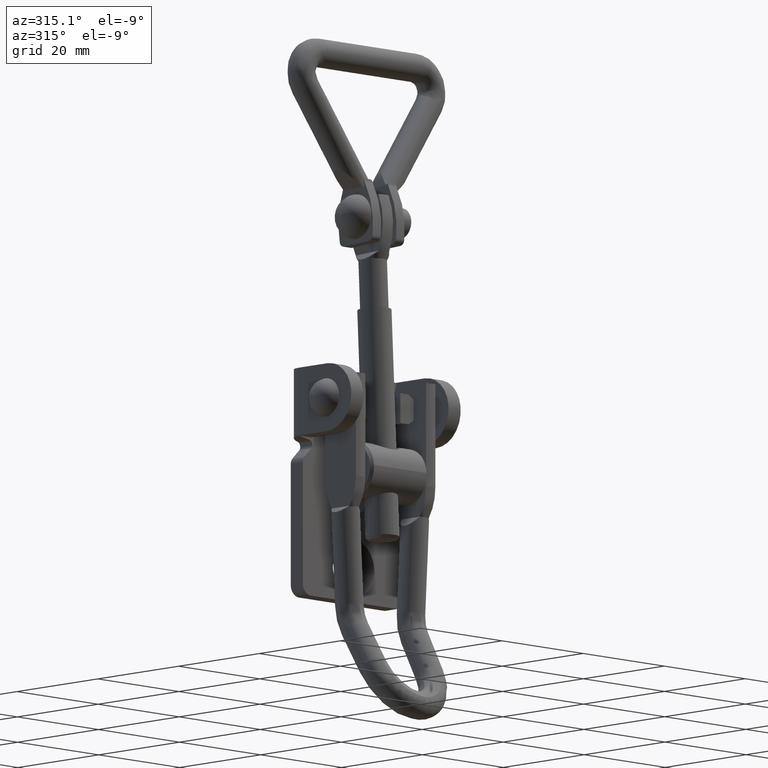
[diagram: clean part render]
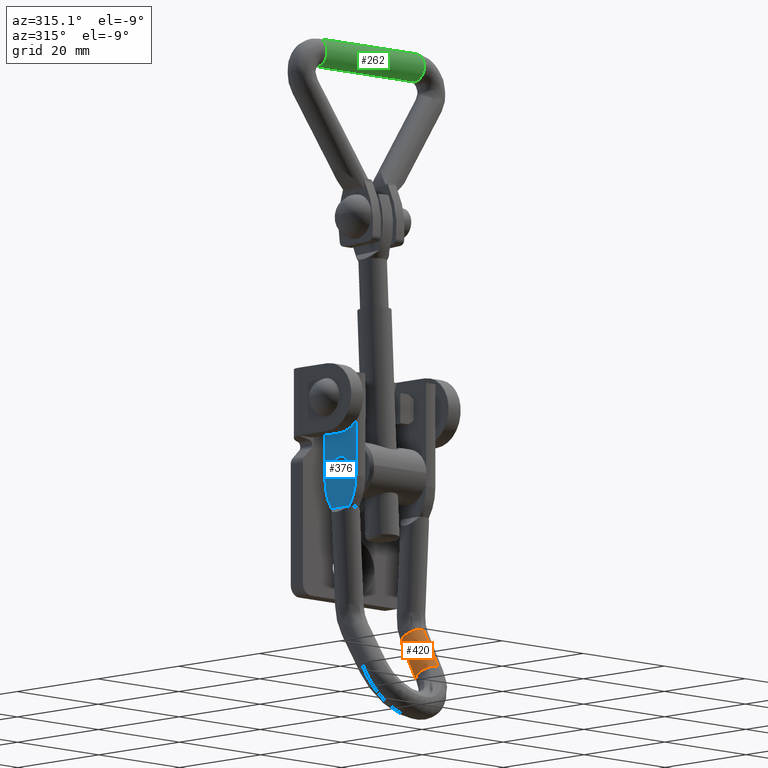
[diagram: same view with three faces highlighted in distinct colors, each labeled with its STEP entity id]
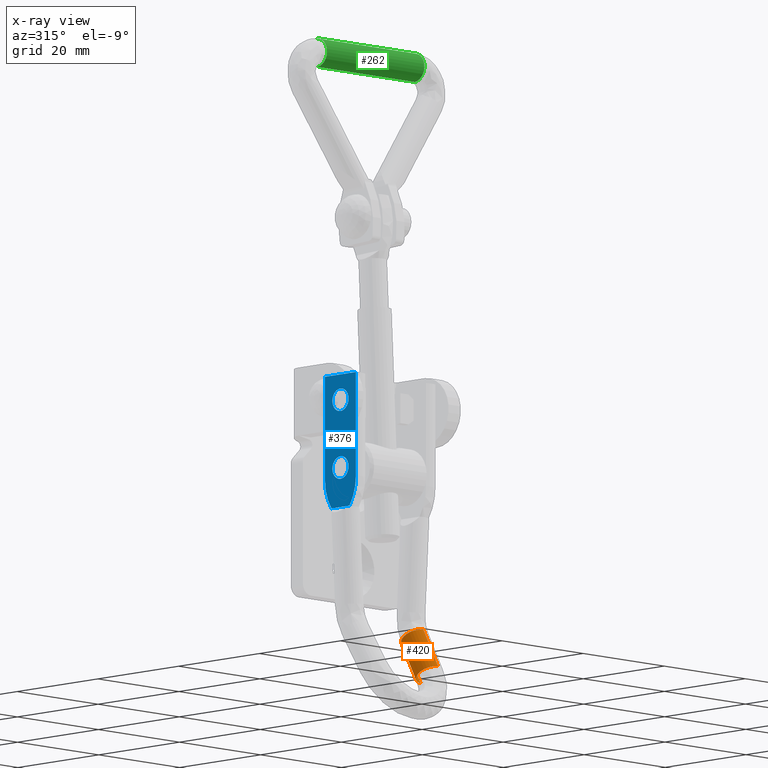
[diagram: x-ray of the same camera — body ghosted, the three highlighted faces saturated]
A machine part, auxiliary view with three faces highlighted in distinct colors.
The next image is the same camera in x-ray (body ghosted, the three faces saturated) — at least one of them is partly hidden behind the body in this view.
Their STEP definitions:

[orange] entity #420 — the highlighted cylindrical surface (edge-blend (fillet) strip) has radius 2.5 mm, axis along (-0.0476, -0.4994, -0.865).
#420=ADVANCED_FACE('',(#2421),#2420,.T.);
#2420=CYLINDRICAL_SURFACE('',#4085,2.50000000000E+00);
#2421=FACE_OUTER_BOUND('',#4086,.T.);
#4082=CARTESIAN_POINT('',(8.53888887601E+00,1.10776430434E+01,-7.22450215029E+00));
#4083=DIRECTION('',(-4.75975933859E-02,-4.99433296080E-01,-8.65043843901E-01));
#4084=DIRECTION('',(0.00000000000E+00,8.66025403809E-01,-4.99999999958E-01));
#4085=AXIS2_PLACEMENT_3D('',#4082,#4083,#4084);
#4086=EDGE_LOOP('',(#5033,#5034,#5035,#5036,#5037,#5038));
#5033=ORIENTED_EDGE('',*,*,#5442,.T.);
#5034=ORIENTED_EDGE('',*,*,#5443,.T.);
#5035=ORIENTED_EDGE('',*,*,#5513,.T.);
#5036=ORIENTED_EDGE('',*,*,#5417,.F.);
#5037=ORIENTED_EDGE('',*,*,#5466,.F.);
#5038=ORIENTED_EDGE('',*,*,#5514,.F.);
#5417=EDGE_CURVE('',#8026,#8033,#8034,.T.);
#5442=EDGE_CURVE('',#8170,#8197,#8204,.T.);
#5443=EDGE_CURVE('',#8197,#8210,#8211,.T.);
#5466=EDGE_CURVE('',#8061,#8026,#8357,.T.);
#5513=EDGE_CURVE('',#8210,#8033,#8658,.T.);
#5514=EDGE_CURVE('',#8170,#8061,#8664,.T.);
#8026=VERTEX_POINT('',#10716);
#8033=VERTEX_POINT('',#10722);
#8034=CIRCLE('',#10726,2.50000000000E+00);
#8061=VERTEX_POINT('',#10744);
#8170=VERTEX_POINT('',#10841);
#8197=VERTEX_POINT('',#10858);
#8204=CIRCLE('',#10865,2.50000000000E+00);
#8210=VERTEX_POINT('',#10866);
#8211=CIRCLE('',#10870,2.50000000000E+00);
#8357=CIRCLE('',#10987,2.50000000000E+00);
#8658=(BOUNDED_CURVE() B_SPLINE_CURVE(1,(#11175,#11176),.UNSPECIFIED.,.F.,.F.) B_SPLINE_CURVE_WITH_KNOTS((2,2),(8.33333366442E-02,9.16666667899E-01),.UNSPECIFIED.) CURVE() GEOMETRIC_REPRESENTATION_ITEM() RATIONAL_B_SPLINE_CURVE((1.00000000000E+00,1.00000000000E+00)) REPRESENTATION_ITEM('') );
#8664=(BOUNDED_CURVE() B_SPLINE_CURVE(1,(#11177,#11178),.UNSPECIFIED.,.F.,.F.) B_SPLINE_CURVE_WITH_KNOTS((2,2),(8.33333333467E-02,9.16666666657E-01),.UNSPECIFIED.) CURVE() GEOMETRIC_REPRESENTATION_ITEM() RATIONAL_B_SPLINE_CURVE((7.50000000000E-01,7.50000000000E-01)) REPRESENTATION_ITEM('') );
#10716=CARTESIAN_POINT('',(4.49320340343E+00,-5.18058639461E+00,-3.52472310162E+01));
#10722=CARTESIAN_POINT('',(6.98942751645E+00,-3.01552288509E+00,-3.66345815807E+01));
#10723=CARTESIAN_POINT('',(6.98942751645E+00,-5.18058639461E+00,-3.53845815808E+01));
#10724=DIRECTION('',(-4.75975933859E-02,-4.99433296080E-01,-8.65043843901E-01));
#10725=DIRECTION('',(-0.00000000000E+00,8.66025403809E-01,-4.99999999958E-01));
#10726=AXIS2_PLACEMENT_3D('',#10723,#10724,#10725);
#10744=CARTESIAN_POINT('',(6.98942751645E+00,-7.34564990387E+00,-3.41345815809E+01));
#10841=CARTESIAN_POINT('',(7.37462422874E+00,-3.30384757778E+00,-2.71339745972E+01));
#10858=CARTESIAN_POINT('',(4.87840011574E+00,-1.13878406841E+00,-2.82466240323E+01));
#10862=CARTESIAN_POINT('',(7.37462422875E+00,-1.13878406826E+00,-2.83839745970E+01));
#10863=DIRECTION('',(-4.75975933859E-02,-4.99433296080E-01,-8.65043843901E-01));
#10864=DIRECTION('',(2.64219720469E-18,8.66025403809E-01,-4.99999999958E-01));
#10865=AXIS2_PLACEMENT_3D('',#10862,#10863,#10864);
#10866=CARTESIAN_POINT('',(7.37462422876E+00,1.02627944111E+00,-2.96339745968E+01));
#10867=CARTESIAN_POINT('',(7.37462422876E+00,-1.13878406841E+00,-2.83839745969E+01));
#10868=DIRECTION('',(-4.75975933859E-02,-4.99433296080E-01,-8.65043843901E-01));
#10869=DIRECTION('',(-2.64219720469E-18,8.66025403809E-01,-4.99999999958E-01));
#10870=AXIS2_PLACEMENT_3D('',#10867,#10868,#10869);
#10984=CARTESIAN_POINT('',(6.98942751645E+00,-5.18058639435E+00,-3.53845815808E+01));
#10985=DIRECTION('',(-4.75975933859E-02,-4.99433296080E-01,-8.65043843901E-01));
#10986=DIRECTION('',(2.64219720469E-18,8.66025403809E-01,-4.99999999958E-01));
#10987=AXIS2_PLACEMENT_3D('',#10984,#10985,#10986);
#11175=CARTESIAN_POINT('',(7.37462422723E+00,1.02627942528E+00,-2.96339746246E+01));
#11176=CARTESIAN_POINT('',(6.98942751587E+00,-3.01552289087E+00,-3.66345815911E+01));
#11177=CARTESIAN_POINT('',(7.37462422875E+00,-3.30384757777E+00,-2.71339745971E+01));
#11178=CARTESIAN_POINT('',(6.98942751645E+00,-7.34564990389E+00,-3.41345815809E+01));

[blue] entity #376 — the highlighted planar face has unit normal (-1, 0, 0).
#376=ADVANCED_FACE('',(#1975,#1976,#1977),#1974,.T.);
#1974=PLANE('',#3638);
#1975=FACE_OUTER_BOUND('',#3639,.T.);
#1976=FACE_BOUND('',#3640,.T.);
#1977=FACE_BOUND('',#3641,.T.);
#3635=CARTESIAN_POINT('',(-9.80000000000E+00,-4.59557969623E+00,-9.34774155038E+00));
#3636=DIRECTION('',(-1.00000000000E+00,0.00000000000E+00,0.00000000000E+00));
#3637=DIRECTION('',(0.00000000000E+00,0.00000000000E+00,1.00000000000E+00));
#3638=AXIS2_PLACEMENT_3D('',#3635,#3636,#3637);
#3639=EDGE_LOOP('',(#4819,#4820,#4821,#4822,#4823,#4824));
#3640=EDGE_LOOP('',(#4825,#4826));
#3641=EDGE_LOOP('',(#4827,#4828));
#4819=ORIENTED_EDGE('',*,*,#5424,.T.);
#4820=ORIENTED_EDGE('',*,*,#5425,.F.);
#4821=ORIENTED_EDGE('',*,*,#5426,.F.);
#4822=ORIENTED_EDGE('',*,*,#5427,.F.);
#4823=ORIENTED_EDGE('',*,*,#5428,.T.);
#4824=ORIENTED_EDGE('',*,*,#5429,.T.);
#4825=ORIENTED_EDGE('',*,*,#5430,.F.);
#4826=ORIENTED_EDGE('',*,*,#5431,.F.);
#4827=ORIENTED_EDGE('',*,*,#5432,.F.);
#4828=ORIENTED_EDGE('',*,*,#5433,.F.);
#5424=EDGE_CURVE('',#8081,#8082,#8083,.T.);
#5425=EDGE_CURVE('',#8089,#8082,#8090,.T.);
#5426=EDGE_CURVE('',#8096,#8089,#8097,.T.);
#5427=EDGE_CURVE('',#8103,#8096,#8104,.T.);
#5428=EDGE_CURVE('',#8103,#7965,#8110,.T.);
#5429=EDGE_CURVE('',#7965,#8081,#8116,.T.);
#5430=EDGE_CURVE('',#8122,#8123,#8124,.T.);
#5431=EDGE_CURVE('',#8123,#8122,#8130,.T.);
#5432=EDGE_CURVE('',#8136,#8137,#8138,.T.);
#5433=EDGE_CURVE('',#8137,#8136,#8144,.T.);
#7965=VERTEX_POINT('',#10673);
#8081=VERTEX_POINT('',#10759);
#8082=VERTEX_POINT('',#10760);
#8083=(BOUNDED_CURVE() B_SPLINE_CURVE(3,(#10761,#10762,#10763,#10764,#10765,#10766,#10767,#10768,#10769,#10770),.UNSPECIFIED.,.F.,.F.) B_SPLINE_CURVE_WITH_KNOTS((4,2,2,2,4),(2.89995809435E-03,4.30239338854E-03,5.70482868272E-03,7.10726397691E-03,8.50969927110E-03),.UNSPECIFIED.) CURVE() GEOMETRIC_REPRESENTATION_ITEM() RATIONAL_B_SPLINE_CURVE((1.00000000000E+00,1.00000000000E+00,1.00000000000E+00,1.00000000000E+00,1.00000000000E+00,1.00000000000E+00,1.00000000000E+00,1.00000000000E+00,1.00000000000E+00,1.00000000000E+00)) REPRESENTATION_ITEM('') );
#8089=VERTEX_POINT('',#10771);
#8090=(BOUNDED_CURVE() B_SPLINE_CURVE(3,(#10772,#10773,#10774,#10775,#10776,#10777,#10778),.UNSPECIFIED.,.F.,.F.) B_SPLINE_CURVE_WITH_KNOTS((4,3,4),(2.28470896357E-02,3.99690229764E-02,4.11107687259E-02),.UNSPECIFIED.) CURVE() GEOMETRIC_REPRESENTATION_ITEM() RATIONAL_B_SPLINE_CURVE((1.00000000000E+00,1.00000000000E+00,1.00000000000E+00,1.00000000000E+00,1.00000000000E+00,1.00000000000E+00,1.00000000000E+00)) REPRESENTATION_ITEM('') );
#8096=VERTEX_POINT('',#10779);
#8097=LINE('',#10780,#10781);
#8103=VERTEX_POINT('',#10783);
#8104=(BOUNDED_CURVE() B_SPLINE_CURVE(3,(#10784,#10785,#10786,#10787,#10788,#10789,#10790,#10791,#10792,#10793),.UNSPECIFIED.,.F.,.F.) B_SPLINE_CURVE_WITH_KNOTS((4,3,3,4),(3.88272772269E-02,3.99690229764E-02,4.79628275717E-02,5.70909563172E-02),.UNSPECIFIED.) CURVE() GEOMETRIC_REPRESENTATION_ITEM() RATIONAL_B_SPLINE_CURVE((1.00000000000E+00,1.00000000000E+00,1.00000000000E+00,1.00000000000E+00,1.00000000000E+00,1.00000000000E+00,1.00000000000E+00,1.00000000000E+00,1.00000000000E+00,1.00000000000E+00)) REPRESENTATION_ITEM('') );
#8110=(BOUNDED_CURVE() B_SPLINE_CURVE(3,(#10794,#10795,#10796,#10797,#10798,#10799,#10800,#10801,#10802,#10803),.UNSPECIFIED.,.F.,.F.) B_SPLINE_CURVE_WITH_KNOTS((4,2,2,2,4),(2.55569482515E-02,2.83778603598E-02,2.90830883869E-02,2.97883164139E-02,3.11987724681E-02),.UNSPECIFIED.) CURVE() GEOMETRIC_REPRESENTATION_ITEM() RATIONAL_B_SPLINE_CURVE((1.00000000000E+00,1.00000000000E+00,1.00000000000E+00,1.00000000000E+00,1.00000000000E+00,1.00000000000E+00,1.00000000000E+00,1.00000000000E+00,1.00000000000E+00,1.00000000000E+00)) REPRESENTATION_ITEM('') );
#8116=LINE('',#10804,#10805);
#8122=VERTEX_POINT('',#10807);
#8123=VERTEX_POINT('',#10808);
#8124=CIRCLE('',#10812,2.00000000000E+00);
#8130=CIRCLE('',#10816,2.00000000000E+00);
#8136=VERTEX_POINT('',#10817);
#8137=VERTEX_POINT('',#10818);
#8138=CIRCLE('',#10822,2.00000000000E+00);
#8144=CIRCLE('',#10826,2.00000000000E+00);
#10673=CARTESIAN_POINT('',(-9.80000000000E+00,2.21979728794E+00,-7.00000000000E+00));
#10759=CARTESIAN_POINT('',(-9.80000000000E+00,-2.21979728796E+00,-7.00000000000E+00));
#10760=CARTESIAN_POINT('',(-9.80000000000E+00,-3.82949366758E+00,-1.78626269494E+00));
#10761=CARTESIAN_POINT('',(-9.80000000000E+00,-2.21979728796E+00,-7.00000000000E+00));
#10762=CARTESIAN_POINT('',(-9.80000000000E+00,-2.48587756503E+00,-6.62317846774E+00));
#10763=CARTESIAN_POINT('',(-9.80000000000E+00,-2.71737870736E+00,-6.22561160900E+00));
#10764=CARTESIAN_POINT('',(-9.80000000000E+00,-3.11914131596E+00,-5.39373790126E+00));
#10765=CARTESIAN_POINT('',(-9.80000000000E+00,-3.28893086059E+00,-4.95783028387E+00));
#10766=CARTESIAN_POINT('',(-9.80000000000E+00,-3.55823090042E+00,-4.07598249239E+00));
#10767=CARTESIAN_POINT('',(-9.80000000000E+00,-3.65943379954E+00,-3.62689649441E+00));
#10768=CARTESIAN_POINT('',(-9.80000000000E+00,-3.79545480509E+00,-2.71252461478E+00));
#10769=CARTESIAN_POINT('',(-9.80000000000E+00,-3.82963742574E+00,-2.24636993230E+00));
#10770=CARTESIAN_POINT('',(-9.80000000000E+00,-3.82949366758E+00,-1.78626269494E+00));
#10771=CARTESIAN_POINT('',(-9.80000000000E+00,-3.82378724996E+00,1.64774155038E+01));
#10772=CARTESIAN_POINT('',(-9.80000000000E+00,-3.82378724996E+00,1.64774155038E+01));
#10773=CARTESIAN_POINT('',(-9.80000000000E+00,-3.82557058800E+00,1.07701046688E+01));
#10774=CARTESIAN_POINT('',(-9.80000000000E+00,-3.82735382256E+00,5.06279383385E+00));
#10775=CARTESIAN_POINT('',(-9.80000000000E+00,-3.82913695407E+00,-6.44517001178E-01));
#10776=CARTESIAN_POINT('',(-9.80000000000E+00,-3.82925585903E+00,-1.02509889910E+00));
#10777=CARTESIAN_POINT('',(-9.80000000000E+00,-3.82937476354E+00,-1.40568079702E+00));
#10778=CARTESIAN_POINT('',(-9.80000000000E+00,-3.82949366758E+00,-1.78626269494E+00));
#10779=CARTESIAN_POINT('',(-9.80000000000E+00,3.82378724995E+00,1.64774155038E+01));
#10780=CARTESIAN_POINT('',(-9.80000000000E+00,3.82378724995E+00,1.64774155038E+01));
#10781=VECTOR('',#10782,7.64757449991E+00);
#10782=DIRECTION('',(0.00000000000E+00,-1.00000000000E+00,0.00000000000E+00));
#10783=CARTESIAN_POINT('',(-9.80000000000E+00,3.82949366757E+00,-1.78626269494E+00));
#10784=CARTESIAN_POINT('',(-9.80000000000E+00,3.82949366757E+00,-1.78626269494E+00));
#10785=CARTESIAN_POINT('',(-9.80000000000E+00,3.82937476353E+00,-1.40568079702E+00));
#10786=CARTESIAN_POINT('',(-9.80000000000E+00,3.82925585902E+00,-1.02509889910E+00));
#10787=CARTESIAN_POINT('',(-9.80000000000E+00,3.82913695406E+00,-6.44517001178E-01));
#10788=CARTESIAN_POINT('',(-9.80000000000E+00,3.82830445433E+00,2.02008440053E+00));
#10789=CARTESIAN_POINT('',(-9.80000000000E+00,3.82747193214E+00,4.68468580224E+00));
#10790=CARTESIAN_POINT('',(-9.80000000000E+00,3.82663938745E+00,7.34928720394E+00));
#10791=CARTESIAN_POINT('',(-9.80000000000E+00,3.82568870432E+00,1.03919966372E+01));
#10792=CARTESIAN_POINT('',(-9.80000000000E+00,3.82473799184E+00,1.34347060705E+01));
#10793=CARTESIAN_POINT('',(-9.80000000000E+00,3.82378724995E+00,1.64774155038E+01));
#10794=CARTESIAN_POINT('',(-9.80000000000E+00,3.82949366757E+00,-1.78626269494E+00));
#10795=CARTESIAN_POINT('',(-9.80000000000E+00,3.82978527914E+00,-2.71958425996E+00));
#10796=CARTESIAN_POINT('',(-9.80000000000E+00,3.69448933699E+00,-3.63009621603E+00));
#10797=CARTESIAN_POINT('',(-9.80000000000E+00,3.35553131236E+00,-4.73966465533E+00));
#10798=CARTESIAN_POINT('',(-9.80000000000E+00,3.27867212399E+00,-4.96090581783E+00));
#10799=CARTESIAN_POINT('',(-9.80000000000E+00,3.10963559694E+00,-5.39308313126E+00));
#10800=CARTESIAN_POINT('',(-9.80000000000E+00,3.01731449401E+00,-5.60472461387E+00));
#10801=CARTESIAN_POINT('',(-9.80000000000E+00,2.71690791217E+00,-6.22628773114E+00));
#10802=CARTESIAN_POINT('',(-9.80000000000E+00,2.48590091193E+00,-6.62314540398E+00));
#10803=CARTESIAN_POINT('',(-9.80000000000E+00,2.21979728794E+00,-7.00000000000E+00));
#10804=CARTESIAN_POINT('',(-9.80000000000E+00,2.21979728794E+00,-7.00000000000E+00));
#10805=VECTOR('',#10806,4.43959457590E+00);
#10806=DIRECTION('',(0.00000000000E+00,-1.00000000000E+00,0.00000000000E+00));
#10807=CARTESIAN_POINT('',(-9.80000000000E+00,-2.80518571335E-11,1.40000000003E+01));
#10808=CARTESIAN_POINT('',(-9.80000000000E+00,-2.80522272078E-11,1.00000000003E+01));
#10809=CARTESIAN_POINT('',(-9.80000000000E+00,-2.80522272078E-11,1.20000000003E+01));
#10810=DIRECTION('',(-1.00000000000E+00,-0.00000000000E+00,0.00000000000E+00));
#10811=DIRECTION('',(0.00000000000E+00,-1.22460635382E-16,-1.00000000000E+00));
#10812=AXIS2_PLACEMENT_3D('',#10809,#10810,#10811);
#10813=CARTESIAN_POINT('',(-9.80000000000E+00,-2.80522272078E-11,1.20000000003E+01));
#10814=DIRECTION('',(-1.00000000000E+00,-0.00000000000E+00,0.00000000000E+00));
#10815=DIRECTION('',(0.00000000000E+00,-1.22460635382E-16,-1.00000000000E+00));
#10816=AXIS2_PLACEMENT_3D('',#10813,#10814,#10815);
#10817=CARTESIAN_POINT('',(-9.80000000000E+00,9.37635894852E-11,2.00000000000E+00));
#10818=CARTESIAN_POINT('',(-9.80000000000E+00,9.37632194109E-11,-2.00000000000E+00));
#10819=CARTESIAN_POINT('',(-9.80000000000E+00,9.37632194109E-11,0.00000000000E+00));
#10820=DIRECTION('',(-1.00000000000E+00,-0.00000000000E+00,0.00000000000E+00));
#10821=DIRECTION('',(0.00000000000E+00,-1.22460635382E-16,-1.00000000000E+00));
#10822=AXIS2_PLACEMENT_3D('',#10819,#10820,#10821);
#10823=CARTESIAN_POINT('',(-9.80000000000E+00,9.37632194109E-11,0.00000000000E+00));
#10824=DIRECTION('',(-1.00000000000E+00,-0.00000000000E+00,0.00000000000E+00));
#10825=DIRECTION('',(0.00000000000E+00,-1.22460635382E-16,-1.00000000000E+00));
#10826=AXIS2_PLACEMENT_3D('',#10823,#10824,#10825);

[green] entity #262 — the highlighted cylindrical surface (edge-blend (fillet) strip) has radius 2.5 mm, axis along (-1, -0, 0).
#262=ADVANCED_FACE('',(#816),#815,.T.);
#815=CYLINDRICAL_SURFACE('',#2756,2.50000000000E+00);
#816=FACE_OUTER_BOUND('',#2757,.T.);
#2753=CARTESIAN_POINT('',(-5.28500000000E+01,4.69015049021E-10,-2.50000000048E+00));
#2754=DIRECTION('',(-1.00000000000E+00,-0.00000000000E+00,-0.00000000000E+00));
#2755=DIRECTION('',(0.00000000000E+00,-1.00915871466E-14,-1.00000000000E+00));
#2756=AXIS2_PLACEMENT_3D('',#2753,#2754,#2755);
#2757=EDGE_LOOP('',(#4293,#4294,#4295,#4296));
#4293=ORIENTED_EDGE('',*,*,#5116,.F.);
#4294=ORIENTED_EDGE('',*,*,#5149,.F.);
#4295=ORIENTED_EDGE('',*,*,#5119,.T.);
#4296=ORIENTED_EDGE('',*,*,#5150,.T.);
#5116=EDGE_CURVE('',#6039,#6040,#6041,.T.);
#5119=EDGE_CURVE('',#5872,#5871,#6059,.T.);
#5149=EDGE_CURVE('',#5872,#6039,#6249,.T.);
#5150=EDGE_CURVE('',#5871,#6040,#6255,.T.);
#5871=VERTEX_POINT('',#8968);
#5872=VERTEX_POINT('',#8969);
#6039=VERTEX_POINT('',#9112);
#6040=VERTEX_POINT('',#9113);
#6041=CIRCLE('',#9117,2.50000000000E+00);
#6059=CIRCLE('',#9165,2.50000000000E+00);
#6249=(BOUNDED_CURVE() B_SPLINE_CURVE(1,(#9280,#9281),.UNSPECIFIED.,.F.,.F.) B_SPLINE_CURVE_WITH_KNOTS((2,2),(8.33333328360E-02,9.16666665505E-01),.UNSPECIFIED.) CURVE() GEOMETRIC_REPRESENTATION_ITEM() RATIONAL_B_SPLINE_CURVE((1.00000000000E+00,1.00000000000E+00)) REPRESENTATION_ITEM('') );
#6255=(BOUNDED_CURVE() B_SPLINE_CURVE(1,(#9282,#9283),.UNSPECIFIED.,.F.,.F.) B_SPLINE_CURVE_WITH_KNOTS((2,2),(8.33333333333E-02,9.16666666667E-01),.UNSPECIFIED.) CURVE() GEOMETRIC_REPRESENTATION_ITEM() RATIONAL_B_SPLINE_CURVE((7.50000000000E-01,7.50000000000E-01)) REPRESENTATION_ITEM('') );
#8968=CARTESIAN_POINT('',(1.20000000000E+01,4.69015049021E-10,-2.38037020650E-10));
#8969=CARTESIAN_POINT('',(1.20000000000E+01,4.68988130893E-10,-5.00000000000E+00));
#9112=CARTESIAN_POINT('',(-1.20000000000E+01,4.68988130893E-10,-5.00000000000E+00));
#9113=CARTESIAN_POINT('',(-1.20000000000E+01,4.69015049021E-10,-2.38037020650E-10));
#9114=CARTESIAN_POINT('',(-1.20000000000E+01,4.69069227904E-10,-2.50000000000E+00));
#9115=DIRECTION('',(-1.00000000000E+00,0.00000000000E+00,0.00000000000E+00));
#9116=DIRECTION('',(-0.00000000000E+00,-0.00000000000E+00,-1.00000000000E+00));
#9117=AXIS2_PLACEMENT_3D('',#9114,#9115,#9116);
#9162=CARTESIAN_POINT('',(1.20000000000E+01,4.69069227904E-10,-2.50000000000E+00));
#9163=DIRECTION('',(-1.00000000000E+00,0.00000000000E+00,0.00000000000E+00));
#9164=DIRECTION('',(-0.00000000000E+00,-0.00000000000E+00,-1.00000000000E+00));
#9165=AXIS2_PLACEMENT_3D('',#9162,#9163,#9164);
#9280=CARTESIAN_POINT('',(1.20000000143E+01,4.68989820053E-10,-5.00000000048E+00));
#9281=CARTESIAN_POINT('',(-1.19999999665E+01,4.68989820053E-10,-5.00000000048E+00));
#9282=CARTESIAN_POINT('',(1.20000000000E+01,4.69040214076E-10,-4.76073476937E-10));
#9283=CARTESIAN_POINT('',(-1.20000000000E+01,4.69040214076E-10,-4.76073476937E-10));